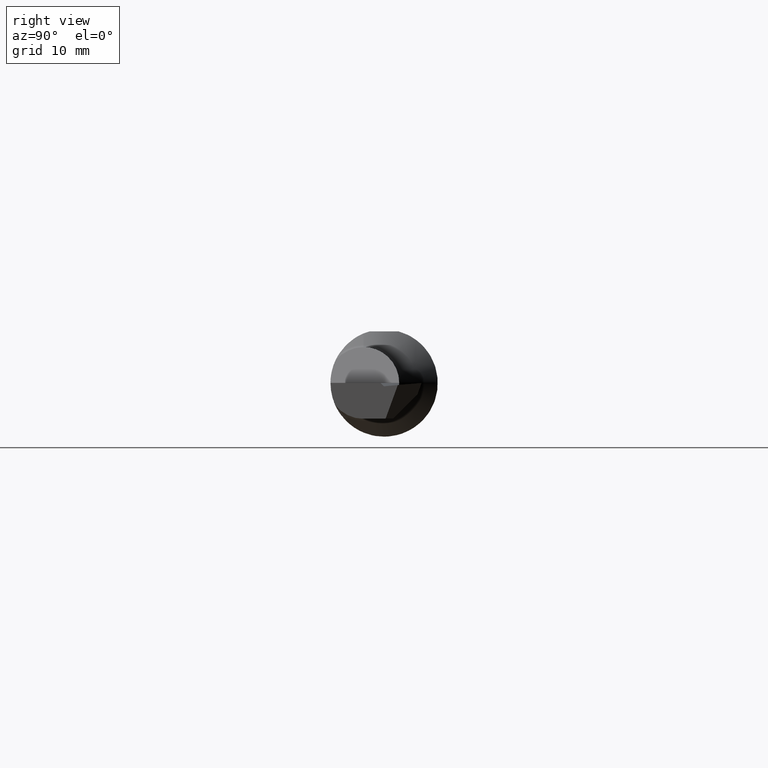
[diagram: clean part render]
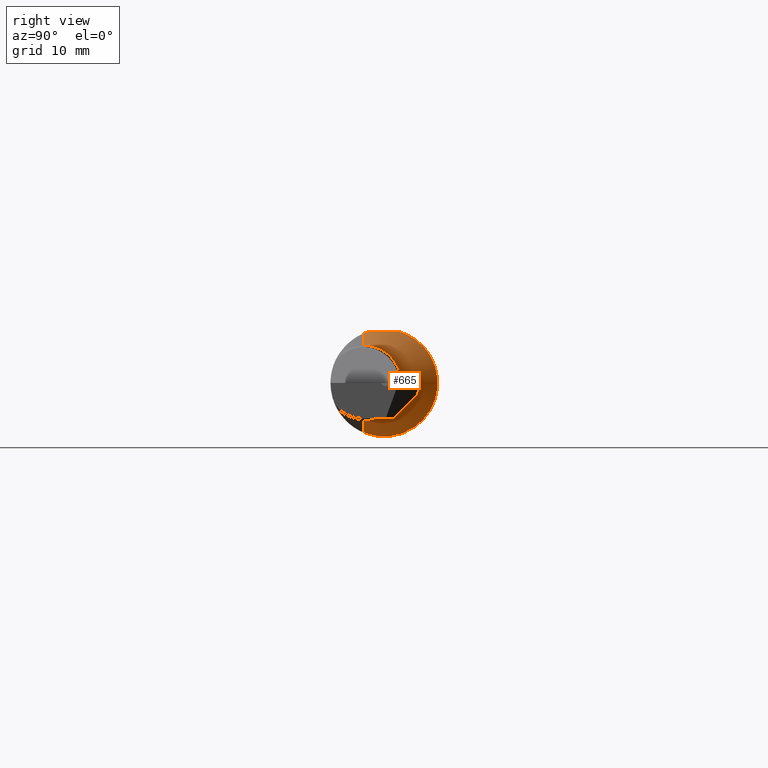
[diagram: same view with one face highlighted and labeled with its STEP entity id]
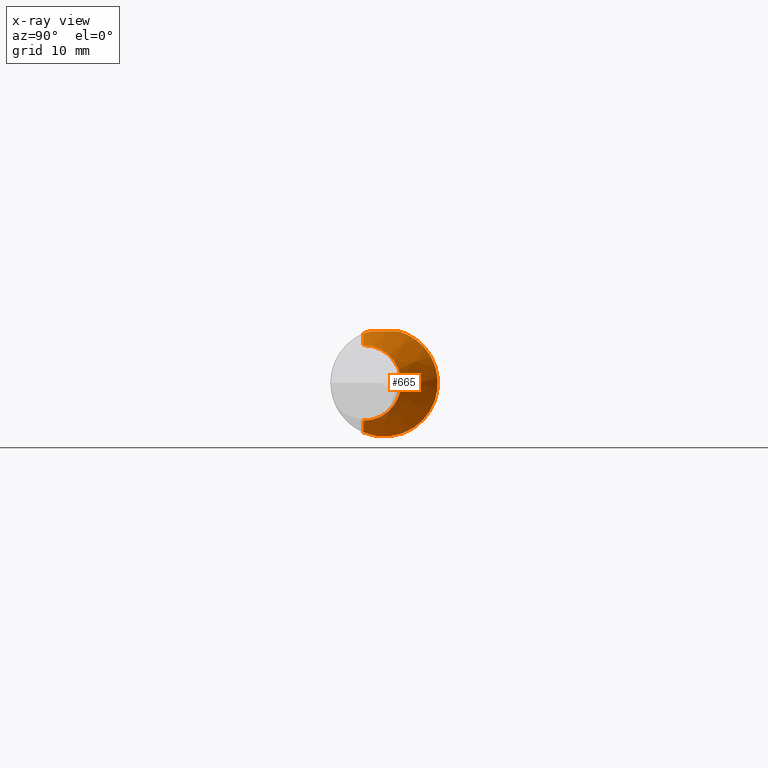
[diagram: x-ray of the same camera — body ghosted, the highlighted face saturated]
A machine part, right view. The second image highlights one B-rep face of the part: STEP entity #665.
The next image is the same camera in x-ray: the body ghosted, the highlighted face saturated — about 12% of this face is hidden behind the body in this view.
In plain terms, the highlighted conical surface has half-angle 45 deg.
Its self-contained STEP definition (entity closure, byte-faithful):
#25 = DIRECTION ( 'NONE',  ( 0.000000000000000000, 0.000000000000000000, 1.000000000000000000 ) ) ;
#32 = CARTESIAN_POINT ( 'NONE',  ( 1.520172998329585301, 0.1878056362616669639, -0.001742610769309108293 ) ) ;
#43 = CARTESIAN_POINT ( 'NONE',  ( 1.588512632015397052, -0.02549221419735801797, -0.1860111964125279183 ) ) ;
#56 = VERTEX_POINT ( 'NONE', #814 ) ;
#66 = EDGE_LOOP ( 'NONE', ( #384, #80, #348, #96, #146, #612 ) ) ;
#78 = DIRECTION ( 'NONE',  ( -0.7071067811865516806, 0.000000000000000000, 0.7071067811865433539 ) ) ;
#80 = ORIENTED_EDGE ( 'NONE', *, *, #582, .T. ) ;
#85 = LINE ( 'NONE', #821, #375 ) ;
#96 = ORIENTED_EDGE ( 'NONE', *, *, #641, .T. ) ;
#97 = CARTESIAN_POINT ( 'NONE',  ( 1.597294288080051805, -0.04178548040504061895, 0.1803500000000000658 ) ) ;
#103 = B_SPLINE_CURVE_WITH_KNOTS ( 'NONE', 3,
 ( #372, #707, #578, #895 ),
 .UNSPECIFIED., .F., .F.,
 ( 4, 4 ),
 ( 7.799852739746135695E-07, 0.0006200624351649172304 ),
 .UNSPECIFIED. ) ;
#111 = CARTESIAN_POINT ( 'NONE',  ( 1.597805746031308871, -0.04949128757996134470, -0.1811094437879526842 ) ) ;
#121 = CARTESIAN_POINT ( 'NONE',  ( 1.607183623461200472, -0.07234999999999965070, -0.1728163765387992490 ) ) ;
#126 = CARTESIAN_POINT ( 'NONE',  ( 1.602477893930588815, -0.06110981857011851121, -0.1775221060694107400 ) ) ;
#131 = CARTESIAN_POINT ( 'NONE',  ( 1.521146235663013435, 0.1843168879482640354, -0.03420148451633126668 ) ) ;
#146 = ORIENTED_EDGE ( 'NONE', *, *, #259, .T. ) ;
#148 = CARTESIAN_POINT ( 'NONE',  ( 1.454999999999998073, -0.07234999999999980336, 0.3249999999999999001 ) ) ;
#178 = CARTESIAN_POINT ( 'NONE',  ( 1.591046750313348745, -0.01534753237029205103, 0.1803500000000000103 ) ) ;
#190 = AXIS2_PLACEMENT_3D ( 'NONE', #520, #765, #25 ) ;
#197 = CARTESIAN_POINT ( 'NONE',  ( 1.529995236286230575, 0.1531585939589148737, 0.1086796373768308954 ) ) ;
#201 = CARTESIAN_POINT ( 'NONE',  ( 1.647677669529663769, -0.07234999999999980336, 0.000000000000000000 ) ) ;
#203 = CARTESIAN_POINT ( 'NONE',  ( 1.524547880979550740, 0.1722069005976020195, 0.07491720450804145726 ) ) ;
#209 = CARTESIAN_POINT ( 'NONE',  ( 1.520337763137152409, 0.1872124516334592592, -0.01487472210176726123 ) ) ;
#259 = EDGE_CURVE ( 'NONE', #536, #767, #103, .T. ) ;
#260 = CARTESIAN_POINT ( 'NONE',  ( 1.570550515836688588, 0.03494845237870435745, 0.1803499999999999548 ) ) ;
#279 = CARTESIAN_POINT ( 'NONE',  ( 1.522432072879413179, 0.1797268795620592108, -0.05330411249906012727 ) ) ;
#284 = CARTESIAN_POINT ( 'NONE',  ( 1.541116425318793226, 0.1155509289413752388, -0.1480264012985756938 ) ) ;
#292 = VECTOR ( 'NONE', #78, 39.37007874015748143 ) ;
#295 = VERTEX_POINT ( 'NONE', #753 ) ;
#338 = EDGE_CURVE ( 'NONE', #295, #392, #921, .T. ) ;
#348 = ORIENTED_EDGE ( 'NONE', *, *, #738, .T. ) ;
#360 = DIRECTION ( 'NONE',  ( 0.000000000000000000, 0.000000000000000000, 1.000000000000000000 ) ) ;
#361 = CARTESIAN_POINT ( 'NONE',  ( 1.558512342576673149, 0.06018334788945470942, -0.1778582784703288955 ) ) ;
#366 = CARTESIAN_POINT ( 'NONE',  ( 1.561652342510382763, 0.05073361804563567001, 0.1803500000000000381 ) ) ;
#371 = CARTESIAN_POINT ( 'NONE',  ( 1.534238480591338494, 0.1386485486275686463, -0.1261636421672477637 ) ) ;
#372 = CARTESIAN_POINT ( 'NONE',  ( 1.598359171801058576, -0.05073361804563105565, 0.1803500000000000381 ) ) ;
#375 = VECTOR ( 'NONE', #813, 39.37007874015748143 ) ;
#384 = ORIENTED_EDGE ( 'NONE', *, *, #338, .T. ) ;
#392 = VERTEX_POINT ( 'NONE', #994 ) ;
#398 = CARTESIAN_POINT ( 'NONE',  ( 1.598359171801058576, -0.05073361804563105565, 0.1803500000000000381 ) ) ;
#411 = EDGE_CURVE ( 'NONE', #295, #767, #574, .T. ) ;
#438 = CARTESIAN_POINT ( 'NONE',  ( 1.537505014431014727, 0.1275766949525765082, 0.1377888583164319225 ) ) ;
#452 = CARTESIAN_POINT ( 'NONE',  ( 1.553874789929541089, 0.07453730533396558944, 0.1723478690588709783 ) ) ;
#457 = CARTESIAN_POINT ( 'NONE',  ( 1.570779348551172072, 0.02364555254899046097, -0.1862697665699595551 ) ) ;
#503 = CARTESIAN_POINT ( 'NONE',  ( 1.595585963931341222, -0.03292301117428798884, 0.1803500000000000658 ) ) ;
#520 = CARTESIAN_POINT ( 'NONE',  ( 1.454999999999998073, -0.07234999999999980336, 0.000000000000000000 ) ) ;
#525 = CARTESIAN_POINT ( 'NONE',  ( 1.543480051322620561, 0.1077969305866319782, 0.1537576155098320518 ) ) ;
#529 = CARTESIAN_POINT ( 'NONE',  ( 1.521224228460478001, 0.1840318009960000556, 0.03744608662781928610 ) ) ;
#536 = VERTEX_POINT ( 'NONE', #398 ) ;
#537 = CARTESIAN_POINT ( 'NONE',  ( 1.532995427860555759, 0.1428842120803211213, -0.1213503740968142341 ) ) ;
#574 = LINE ( 'NONE', #148, #292 ) ;
#578 = CARTESIAN_POINT ( 'NONE',  ( 1.604251527663557164, -0.06534634870195799028, 0.1757484723364423351 ) ) ;
#579 = CARTESIAN_POINT ( 'NONE',  ( 1.578555425751704266, 0.01874826884798286991, 0.1803500000000000103 ) ) ;
#582 = EDGE_CURVE ( 'NONE', #392, #681, #85, .T. ) ;
#601 = B_SPLINE_CURVE_WITH_KNOTS ( 'NONE', 3,
 ( #978, #260, #579, #908, #178, #503, #97, #750 ),
 .UNSPECIFIED., .F., .F.,
 ( 4, 2, 2, 4 ),
 ( 0.004201767959908210559, 0.005580933394130890846, 0.006270516111242234458, 0.006960098828353578071 ),
 .UNSPECIFIED. ) ;
#609 = DIRECTION ( 'NONE',  ( -1.000000000000000000, -0.000000000000000000, -0.000000000000000000 ) ) ;
#610 = CARTESIAN_POINT ( 'NONE',  ( 1.521509882952550630, 0.1830157774888623856, -0.04059932064178665284 ) ) ;
#612 = ORIENTED_EDGE ( 'NONE', *, *, #411, .F. ) ;
#613 = CARTESIAN_POINT ( 'NONE',  ( 1.522992082306586559, 0.1777339935978583807, -0.05960787101436536978 ) ) ;
#628 = CARTESIAN_POINT ( 'NONE',  ( 1.529558854539173618, 0.1547009345895635768, -0.1058752598168466730 ) ) ;
#641 = EDGE_CURVE ( 'NONE', #56, #536, #601, .T. ) ;
#665 = ADVANCED_FACE ( 'NONE', ( #762 ), #723, .T. ) ;
#681 = VERTEX_POINT ( 'NONE', #121 ) ;
#683 = CARTESIAN_POINT ( 'NONE',  ( 1.538189419821468285, 0.1252997508203159693, -0.1398665203331845575 ) ) ;
#694 = CARTESIAN_POINT ( 'NONE',  ( 1.551107762570095527, 0.08323016174429365144, -0.1683102574403324281 ) ) ;
#698 = CARTESIAN_POINT ( 'NONE',  ( 1.527954695071388480, 0.1602583907463168977, 0.09790328053815632037 ) ) ;
#707 = CARTESIAN_POINT ( 'NONE',  ( 1.601310630883624908, -0.05814350708713277027, 0.1782655504275461877 ) ) ;
#710 = AXIS2_PLACEMENT_3D ( 'NONE', #201, #609, #360 ) ;
#723 = CONICAL_SURFACE ( 'NONE', #190, 0.3249999999999999001, 0.7853981633974423948 ) ;
#738 = EDGE_CURVE ( 'NONE', #681, #56, #1040, .T. ) ;
#750 = CARTESIAN_POINT ( 'NONE',  ( 1.598359171801058576, -0.05073361804563105565, 0.1803500000000000381 ) ) ;
#753 = CARTESIAN_POINT ( 'NONE',  ( 1.647677669529663769, -0.07234999999999980336, 0.1323223304703363135 ) ) ;
#762 = FACE_OUTER_BOUND ( 'NONE', #66, .T. ) ;
#765 = DIRECTION ( 'NONE',  ( -1.000000000000000000, -0.000000000000000000, -0.000000000000000000 ) ) ;
#767 = VERTEX_POINT ( 'NONE', #1046 ) ;
#777 = CARTESIAN_POINT ( 'NONE',  ( 1.557636035106981121, 0.06285457607314870465, 0.1769402963409190677 ) ) ;
#782 = CARTESIAN_POINT ( 'NONE',  ( 1.583895706846281115, -0.01311122781479178920, -0.1872918828694020432 ) ) ;
#813 = DIRECTION ( 'NONE',  ( -0.7071067811865516806, 8.659560562354882322E-17, -0.7071067811865433539 ) ) ;
#814 = CARTESIAN_POINT ( 'NONE',  ( 1.561652342510382763, 0.05073361804563567001, 0.1803500000000000381 ) ) ;
#821 = CARTESIAN_POINT ( 'NONE',  ( 1.454999999999998073, -0.07234999999999976172, -0.3249999999999999001 ) ) ;
#834 = CARTESIAN_POINT ( 'NONE',  ( 1.523177002644261036, 0.1770736257016730097, 0.06256871632400125283 ) ) ;
#838 = CARTESIAN_POINT ( 'NONE',  ( 1.562478857280754418, 0.04812493428509516391, -0.1814925034083489375 ) ) ;
#843 = CARTESIAN_POINT ( 'NONE',  ( 1.546798760652082994, 0.09699900128417564271, 0.1607818136651501806 ) ) ;
#850 = CARTESIAN_POINT ( 'NONE',  ( 1.547627288442569693, 0.09434647022735526134, -0.1623655635172079614 ) ) ;
#855 = CARTESIAN_POINT ( 'NONE',  ( 1.534807027521195799, 0.1366915025519610805, 0.1287798571746312237 ) ) ;
#895 = CARTESIAN_POINT ( 'NONE',  ( 1.607183623461200472, -0.07234999999999965070, 0.1728163765387992490 ) ) ;
#908 = CARTESIAN_POINT ( 'NONE',  ( 1.588213209911806700, -0.006643641855691782665, 0.1803500000000000381 ) ) ;
#921 = CIRCLE ( 'NONE', #710, 0.1323223304703363135 ) ;
#922 = CARTESIAN_POINT ( 'NONE',  ( 1.530656052074582441, 0.1509087159451678317, -0.1112131773084089476 ) ) ;
#926 = CARTESIAN_POINT ( 'NONE',  ( 1.520621239219315468, 0.1861972792961229251, 0.02458794189566219229 ) ) ;
#936 = CARTESIAN_POINT ( 'NONE',  ( 1.524926753194636220, 0.1708787332540030179, -0.07791196371509565011 ) ) ;
#942 = CARTESIAN_POINT ( 'NONE',  ( 1.575054110130808205, 0.01139412105151804515, -0.1874041826882222039 ) ) ;
#978 = CARTESIAN_POINT ( 'NONE',  ( 1.561652342510382763, 0.05073361804563567001, 0.1803500000000000381 ) ) ;
#994 = CARTESIAN_POINT ( 'NONE',  ( 1.647677669529663769, -0.07234999999999978948, -0.1323223304703363135 ) ) ;
#1005 = CARTESIAN_POINT ( 'NONE',  ( 1.526563200756603900, 0.1651118022961632903, -0.08947527289251183680 ) ) ;
#1009 = CARTESIAN_POINT ( 'NONE',  ( 1.607183623461200472, -0.07234999999999965070, -0.1728163765387992490 ) ) ;
#1040 = B_SPLINE_CURVE_WITH_KNOTS ( 'NONE', 3,
 ( #1009, #126, #111, #43, #782, #942, #457, #838, #361, #694, #850, #284, #683, #371, #537, #922, #628, #1005, #936, #613, #279, #610, #131, #209, #32, #926, #529, #834, #203, #698, #197, #855, #438, #525, #843, #452, #777, #366 ),
 .UNSPECIFIED., .F., .F.,
 ( 4, 2, 2, 2, 2, 2, 2, 2, 2, 2, 2, 2, 2, 2, 2, 2, 2, 2, 4 ),
 ( 0.003756978855824081968, 0.004750606070745806882, 0.005744233285667532662, 0.006737860500589257576, 0.007731487715510982489, 0.008725114930432707402, 0.009718742145354432316, 0.01021555575281529391, 0.01071236936027615376, 0.01170599657519787520, 0.01220281018265873679, 0.01269962379011959838, 0.01369325100504131809, 0.01468687821996304127, 0.01568050543488476445, 0.01667413264980648416, 0.01766775986472820387, 0.01866138707964992705, 0.01965501429457165022 ),
 .UNSPECIFIED. ) ;
#1046 = CARTESIAN_POINT ( 'NONE',  ( 1.607183623461200472, -0.07234999999999965070, 0.1728163765387992490 ) ) ;